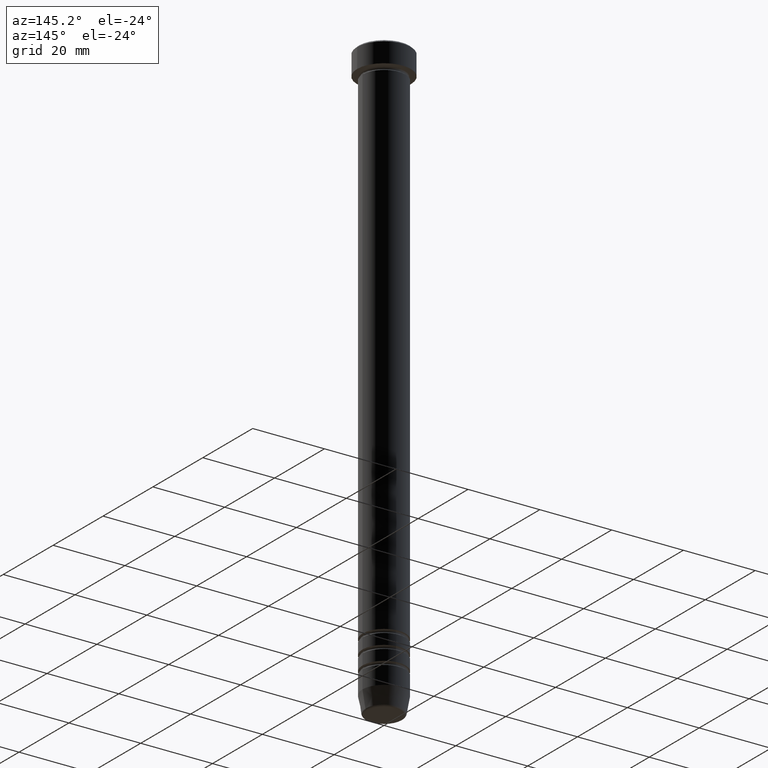
[diagram: clean part render]
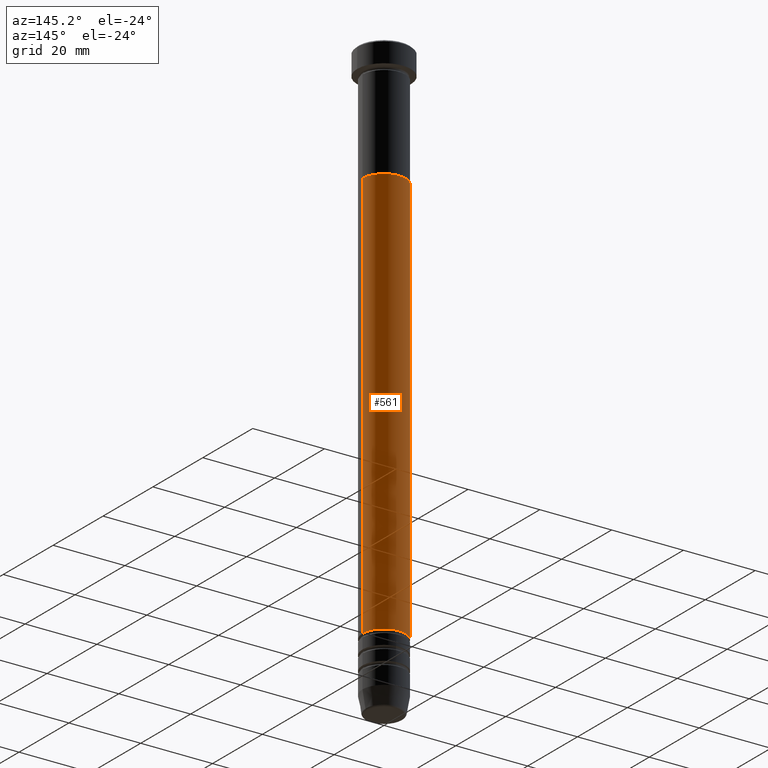
[diagram: same view with one face highlighted and labeled with its STEP entity id]
A machine part, auxiliary view. The second image highlights one B-rep face of the part: STEP entity #561.
In plain terms, the highlighted cylindrical surface (edge-blend (fillet) strip) has radius 6 mm, axis along (-0, -0, 1).
Its self-contained STEP definition (entity closure, byte-faithful):
#22 = ORIENTED_EDGE ( 'NONE', *, *, #881, .T. ) ;
#29 = EDGE_LOOP ( 'NONE', ( #591, #22, #493, #1047 ) ) ;
#108 = AXIS2_PLACEMENT_3D ( 'NONE', #738, #899, #721 ) ;
#111 = CIRCLE ( 'NONE', #747, 6.000000000000000888 ) ;
#140 = EDGE_CURVE ( 'NONE', #1054, #254, #846, .T. ) ;
#226 = CARTESIAN_POINT ( 'NONE',  ( -5.999999999999998224, 7.347880794884117764E-16, 0.000000000000000000 ) ) ;
#254 = VERTEX_POINT ( 'NONE', #1074 ) ;
#285 = CARTESIAN_POINT ( 'NONE',  ( 5.999999999999995559, 0.000000000000000000, -147.0000000000000284 ) ) ;
#304 = EDGE_CURVE ( 'NONE', #614, #739, #111, .T. ) ;
#347 = DIRECTION ( 'NONE',  ( 1.000000000000000000, 0.000000000000000000, 0.000000000000000000 ) ) ;
#411 = VECTOR ( 'NONE', #1078, 1000.000000000000000 ) ;
#443 = AXIS2_PLACEMENT_3D ( 'NONE', #960, #1147, #347 ) ;
#493 = ORIENTED_EDGE ( 'NONE', *, *, #304, .F. ) ;
#560 = DIRECTION ( 'NONE',  ( -0.000000000000000000, -0.000000000000000000, 1.000000000000000000 ) ) ;
#561 = ADVANCED_FACE ( 'NONE', ( #975 ), #604, .T. ) ;
#591 = ORIENTED_EDGE ( 'NONE', *, *, #140, .T. ) ;
#604 = CYLINDRICAL_SURFACE ( 'NONE', #443, 5.999999999999998224 ) ;
#614 = VERTEX_POINT ( 'NONE', #791 ) ;
#635 = LINE ( 'NONE', #1075, #411 ) ;
#721 = DIRECTION ( 'NONE',  ( 1.000000000000000000, 0.000000000000000000, 0.000000000000000000 ) ) ;
#738 = CARTESIAN_POINT ( 'NONE',  ( 0.000000000000000000, 0.000000000000000000, -147.0000000000000284 ) ) ;
#739 = VERTEX_POINT ( 'NONE', #1044 ) ;
#747 = AXIS2_PLACEMENT_3D ( 'NONE', #824, #560, #1089 ) ;
#751 = LINE ( 'NONE', #226, #963 ) ;
#756 = DIRECTION ( 'NONE',  ( -0.000000000000000000, -0.000000000000000000, 1.000000000000000000 ) ) ;
#791 = CARTESIAN_POINT ( 'NONE',  ( 6.000000000000000888, 0.000000000000000000, -33.00000000000000000 ) ) ;
#809 = EDGE_CURVE ( 'NONE', #1054, #614, #635, .T. ) ;
#824 = CARTESIAN_POINT ( 'NONE',  ( 0.000000000000000000, 0.000000000000000000, -33.00000000000000000 ) ) ;
#846 = CIRCLE ( 'NONE', #108, 5.999999999999995559 ) ;
#881 = EDGE_CURVE ( 'NONE', #254, #739, #751, .T. ) ;
#899 = DIRECTION ( 'NONE',  ( -0.000000000000000000, -0.000000000000000000, 1.000000000000000000 ) ) ;
#960 = CARTESIAN_POINT ( 'NONE',  ( 0.000000000000000000, 0.000000000000000000, 0.000000000000000000 ) ) ;
#963 = VECTOR ( 'NONE', #756, 1000.000000000000000 ) ;
#975 = FACE_OUTER_BOUND ( 'NONE', #29, .T. ) ;
#1044 = CARTESIAN_POINT ( 'NONE',  ( -6.000000000000000888, 7.347880794884120722E-16, -33.00000000000000000 ) ) ;
#1047 = ORIENTED_EDGE ( 'NONE', *, *, #809, .F. ) ;
#1054 = VERTEX_POINT ( 'NONE', #285 ) ;
#1074 = CARTESIAN_POINT ( 'NONE',  ( -5.999999999999995559, 7.347880794884116778E-16, -147.0000000000000284 ) ) ;
#1075 = CARTESIAN_POINT ( 'NONE',  ( 5.999999999999998224, 0.000000000000000000, 0.000000000000000000 ) ) ;
#1078 = DIRECTION ( 'NONE',  ( -0.000000000000000000, -0.000000000000000000, 1.000000000000000000 ) ) ;
#1089 = DIRECTION ( 'NONE',  ( 1.000000000000000000, 0.000000000000000000, 0.000000000000000000 ) ) ;
#1147 = DIRECTION ( 'NONE',  ( -0.000000000000000000, -0.000000000000000000, 1.000000000000000000 ) ) ;